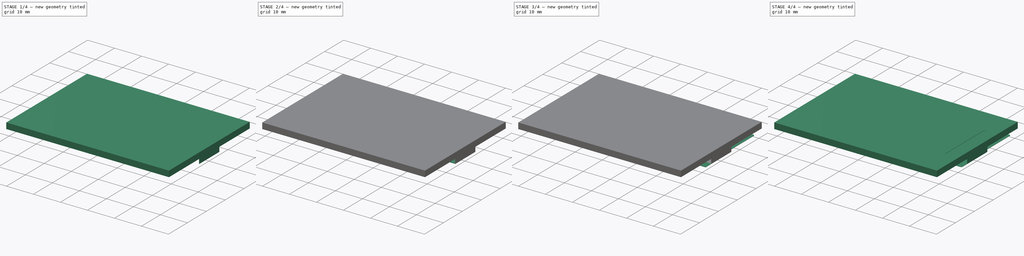
[diagram: build sequence overview — one tinted view per stage of 4, left to right]
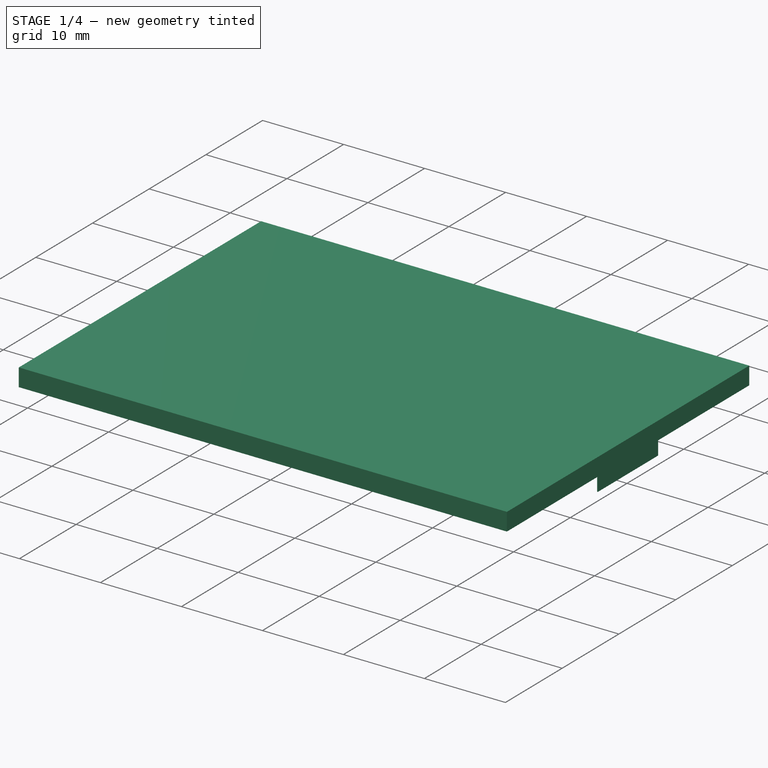
[diagram: stage 1 of 4 — iso view after this stage's code; geometry added in this stage tinted green]
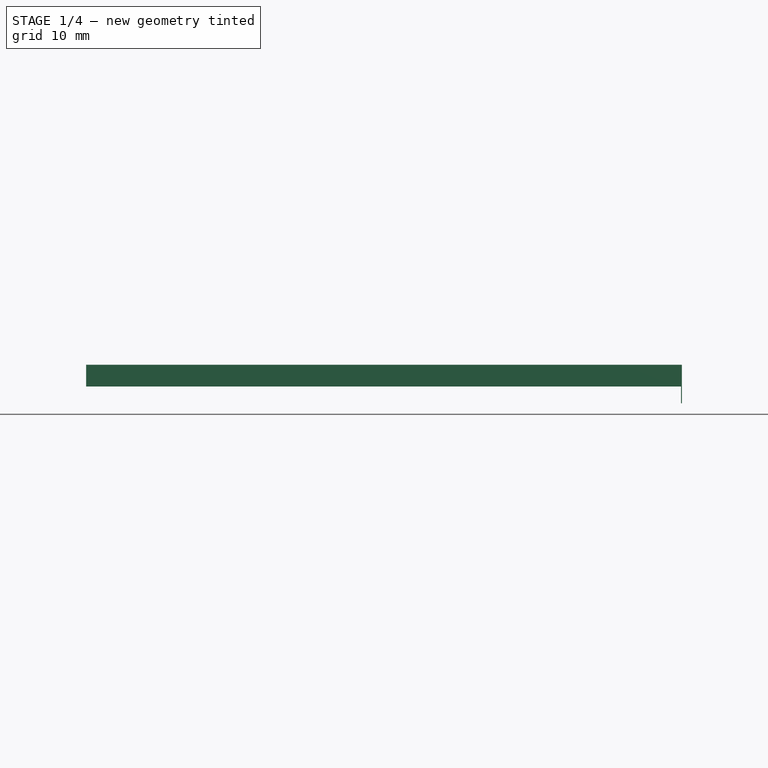
[diagram: stage 1 of 4 — front view after this stage's code; geometry added in this stage tinted green]
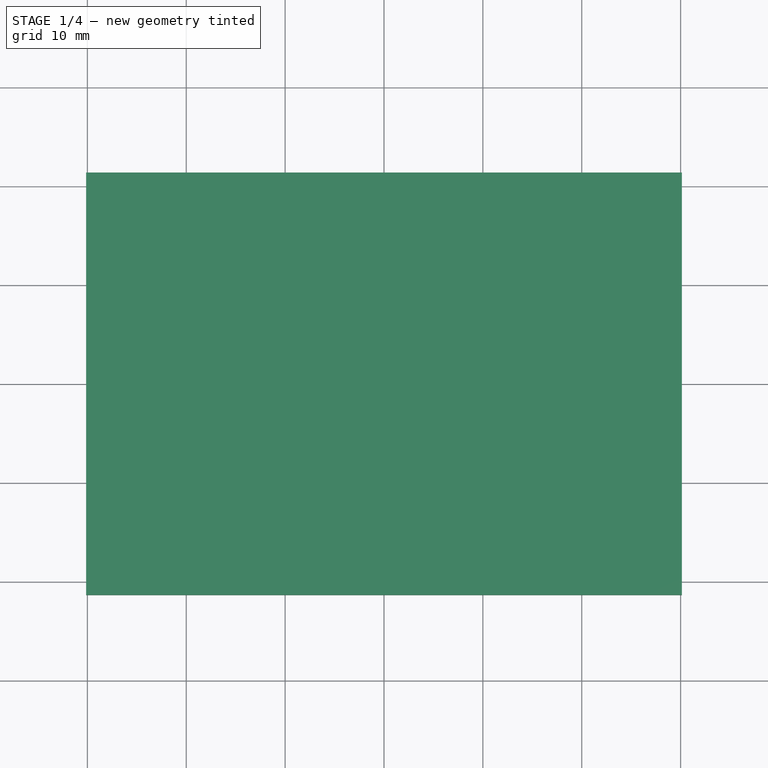
[diagram: stage 1 of 4 — top view after this stage's code; geometry added in this stage tinted green]
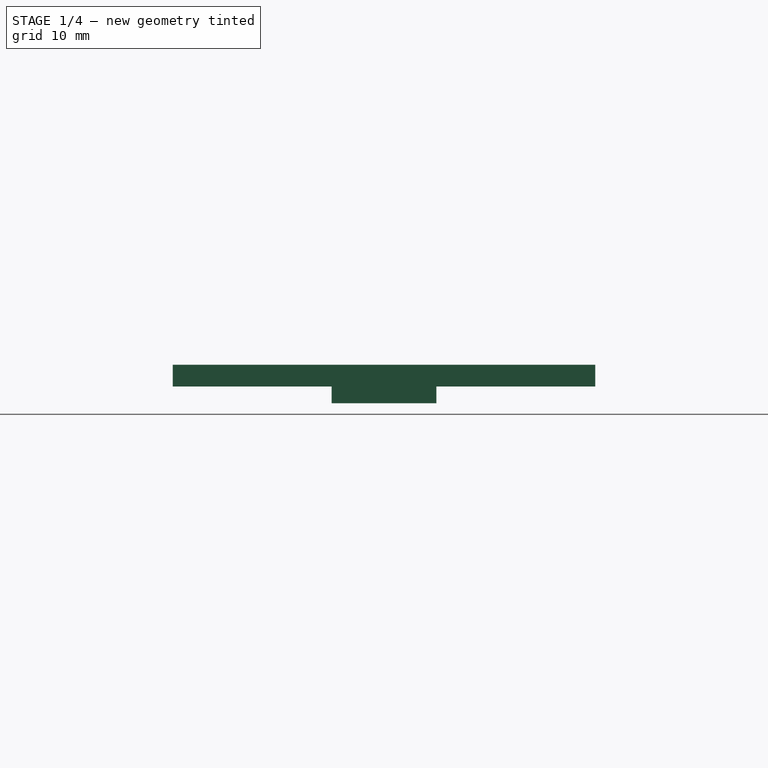
[diagram: stage 1 of 4 — right view after this stage's code; geometry added in this stage tinted green]
FCSTD DOCUMENT  (FreeCAD 0.20R29177 +426 (Git))
Label: 2.4Inch-3D-Model
License: All rights reserved
LicenseURL: http://en.wikipedia.org/wiki/All_rights_reserved
objects: Sketcher::SketchObject×8, PartDesign::Pad×7, PartDesign::Fillet×4, PartDesign::Pocket×1, PartDesign::Body×1
note: 33 computed .brp shape members not serialized (recipe doc carries the construction recipe); baked Part::Feature solids carry a one-line shape summary decoded from their .brp

FEATURE [Sketcher::SketchObject] Sketch
  FullyConstrained = true
  MapMode = 5
  Support = -> [XY_Plane]
  sketch-geometry (4):
    g0: LineSegment StartX=-28.63 StartY=20.31 StartZ=0 EndX=28.63 EndY=20.31 EndZ=0
    g1: LineSegment StartX=28.63 StartY=20.31 StartZ=0 EndX=28.63 EndY=-20.31 EndZ=0
    g2: LineSegment StartX=28.63 StartY=-20.31 StartZ=0 EndX=-28.63 EndY=-20.31 EndZ=0
    g3: LineSegment StartX=-28.63 StartY=-20.31 StartZ=0 EndX=-28.63 EndY=20.31 EndZ=0
  constraints (11):
    c: Coincident(g0,g1)
    c: Coincident(g1,g2)
    c: Coincident(g2,g3)
    c: Coincident(g3,g0)
    c: Horizontal(g0)
    c: Horizontal(g2)
    c: Vertical(g1)
    c: Vertical(g3)
    c: DistanceX(g0,g0) = 57.26
    c: DistanceY(g3,g3) = 40.62
    c: Symmetric(g2,g0,g-1)
FEATURE [PartDesign::Pad] Pad
  Direction = (0,0,1)
  Length = 2.2
  Length2 = 10
  Profile = -> Sketch
  ReferenceAxis = -> Sketch [N_Axis]
  Type = 0
FEATURE [Sketcher::SketchObject] Sketch001
  FullyConstrained = true
  MapMode = 5
  Placement = pos=(0,0,2.2) rot=(0,0,1;0rad)
  Support = -> [Pad]
  sketch-geometry (4):
    g0: LineSegment StartX=-30.13 StartY=21.36 StartZ=0 EndX=30.13 EndY=21.36 EndZ=0
    g1: LineSegment StartX=30.13 StartY=21.36 StartZ=0 EndX=30.13 EndY=-21.36 EndZ=0
    g2: LineSegment StartX=30.13 StartY=-21.36 StartZ=0 EndX=-30.13 EndY=-21.36 EndZ=0
    g3: LineSegment StartX=-30.13 StartY=-21.36 StartZ=0 EndX=-30.13 EndY=21.36 EndZ=0
  constraints (11):
    c: Coincident(g0,g1)
    c: Coincident(g1,g2)
    c: Coincident(g2,g3)
    c: Coincident(g3,g0)
    c: Horizontal(g0)
    c: Horizontal(g2)
    c: Vertical(g1)
    c: Vertical(g3)
    c: DistanceY(g3,g3) = 42.72
    c: DistanceX(g0,g0) = 60.26
    c: Symmetric(g0,g2,g-1)
FEATURE [PartDesign::Pad] Pad001
  BaseFeature = -> Pad
  Direction = (0,0,1)
  Length = 2.2
  Length2 = 10
  Profile = -> Sketch001
  ReferenceAxis = -> Sketch001 [N_Axis]
  Reversed = true
  Type = 0
FEATURE [Sketcher::SketchObject] Sketch002
  ExternalGeometry = -> [Pad001]
  FullyConstrained = true
  MapMode = 5
  Placement = pos=(0,0,0) rot=(1,0,0;3.14159rad)
  Support = -> [Pad001]
  sketch-geometry (4):
    g0: LineSegment StartX=30.03 StartY=5.3 StartZ=0 EndX=30.13 EndY=5.3 EndZ=0
    g1: LineSegment StartX=30.13 StartY=5.3 StartZ=0 EndX=30.13 EndY=-5.3 EndZ=0
    g2: LineSegment StartX=30.13 StartY=-5.3 StartZ=0 EndX=30.03 EndY=-5.3 EndZ=0
    g3: LineSegment StartX=30.03 StartY=-5.3 StartZ=0 EndX=30.03 EndY=5.3 EndZ=0
  constraints (11):
    c: Coincident(g0,g1)
    c: Coincident(g1,g2)
    c: Coincident(g2,g3)
    c: Coincident(g3,g0)
    c: Horizontal(g0)
    c: Horizontal(g2)
    c: Vertical(g3)
    c: DistanceX(g0,g0) = 0.1
    c: DistanceY(g3,g3) = 10.6
    c: Symmetric(g0,g1,g-1)
    c: PointOnObject(g0,g-3)
FEATURE [PartDesign::Pad] Pad002
  BaseFeature = -> Pad001
  Direction = (0,0,-1)
  Length = 1.7
  Length2 = 10
  Profile = -> Sketch002
  ReferenceAxis = -> Sketch002 [N_Axis]
  Type = 0
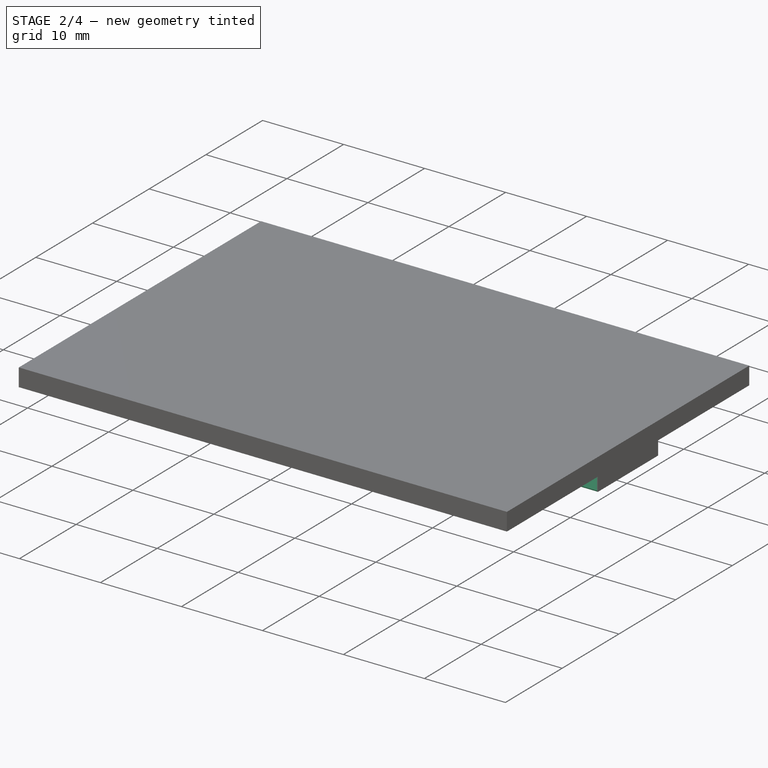
[diagram: stage 2 of 4 — iso view after this stage's code; geometry added in this stage tinted green]
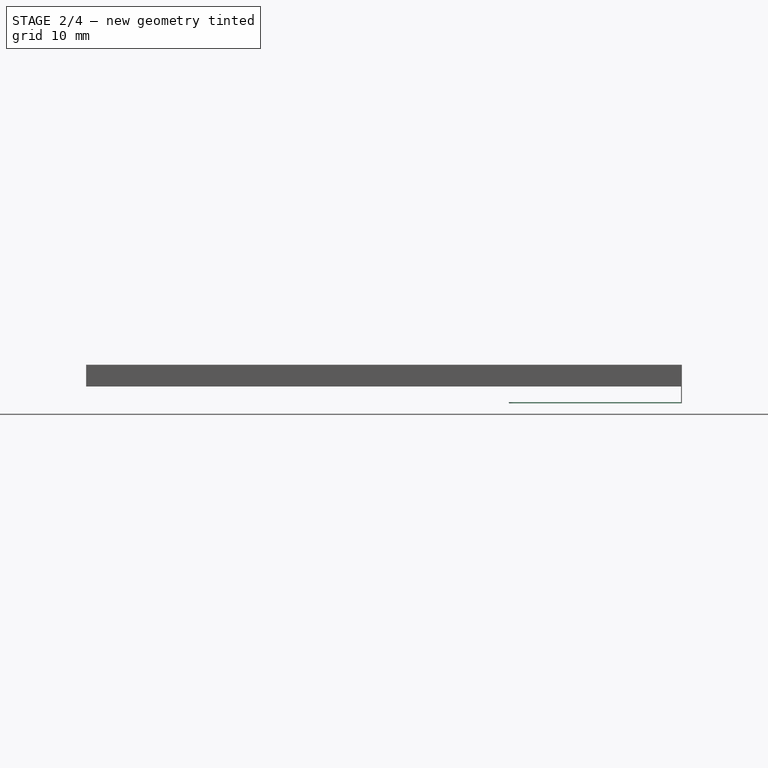
[diagram: stage 2 of 4 — front view after this stage's code; geometry added in this stage tinted green]
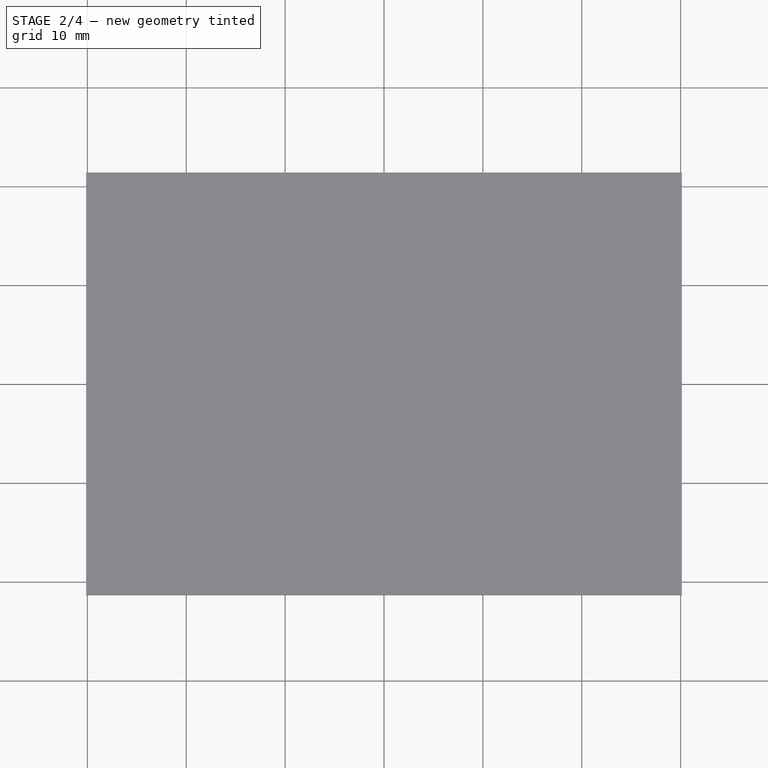
[diagram: stage 2 of 4 — top view after this stage's code; geometry added in this stage tinted green]
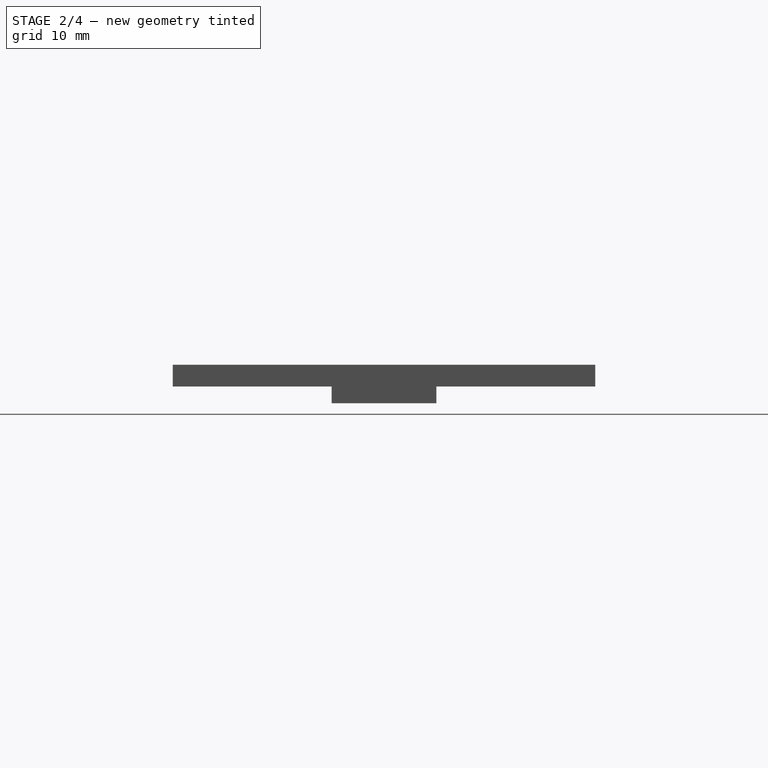
[diagram: stage 2 of 4 — right view after this stage's code; geometry added in this stage tinted green]
FEATURE [Sketcher::SketchObject] Sketch003
  ExternalGeometry = -> [Pad002]
  FullyConstrained = true
  MapMode = 5
  Placement = pos=(30.03,0,0) rot=(0.57735,-0.57735,-0.57735;2.0944rad)
  Support = -> [Pad002]
  sketch-geometry (4):
    g0: LineSegment StartX=5.3 StartY=-1.6 StartZ=0 EndX=-5.3 EndY=-1.6 EndZ=0
    g1: LineSegment StartX=-5.3 StartY=-1.6 StartZ=0 EndX=-5.3 EndY=-1.7 EndZ=0
    g2: LineSegment StartX=-5.3 StartY=-1.7 StartZ=0 EndX=5.3 EndY=-1.7 EndZ=0
    g3: LineSegment StartX=5.3 StartY=-1.7 StartZ=0 EndX=5.3 EndY=-1.6 EndZ=0
  constraints (10):
    c: Coincident(g0,g1)
    c: Coincident(g1,g2)
    c: Coincident(g2,g3)
    c: Coincident(g3,g0)
    c: Horizontal(g0)
    c: Vertical(g1)
    c: Vertical(g3)
    c: DistanceY(g1,g1) = 0.1
    c: Coincident(g1,g-5)
    c: Coincident(g2,g-4)
FEATURE [PartDesign::Pad] Pad003
  BaseFeature = -> Pad002
  Direction = (-1,0,0)
  Length = 17.4
  Length2 = 10
  Profile = -> Sketch003
  ReferenceAxis = -> Sketch003 [N_Axis]
  Type = 0
FEATURE [Sketcher::SketchObject] Sketch004
  ExternalGeometry = -> [Pad003]
  FullyConstrained = true
  MapMode = 5
  Placement = pos=(0,0,2.2) rot=(0,0,1;0rad)
  Support = -> [Pad003]
  sketch-geometry (4):
    g0: LineSegment StartX=-27.03 StartY=18.71 StartZ=0 EndX=22.63 EndY=18.71 EndZ=0
    g1: LineSegment StartX=22.63 StartY=18.71 StartZ=0 EndX=22.63 EndY=-18.71 EndZ=0
    g2: LineSegment StartX=22.63 StartY=-18.71 StartZ=0 EndX=-27.03 EndY=-18.71 EndZ=0
    g3: LineSegment StartX=-27.03 StartY=-18.71 StartZ=0 EndX=-27.03 EndY=18.71 EndZ=0
  constraints (11):
    c: Coincident(g0,g1)
    c: Coincident(g1,g2)
    c: Coincident(g2,g3)
    c: Coincident(g3,g0)
    c: Horizontal(g0)
    c: Horizontal(g2)
    c: Vertical(g1)
    c: DistanceX(g0,g0) = 49.66
    c: DistanceY(g3,g3) = 37.42
    c: Distance(g1,g-3) = 6
    c: Symmetric(g2,g0,g-1)
FEATURE [PartDesign::Pad] Pad004
  BaseFeature = -> Pad003
  Direction = (0,0,1)
  Length = 1
  Length2 = 10
  Profile = -> Sketch004
  ReferenceAxis = -> Sketch004 [N_Axis]
  Reversed = true
  Type = 0
FEATURE [PartDesign::Fillet] Fillet
  Base = -> Pad004 [Edge47,Edge43]
  BaseFeature = -> Pad004
  Radius = 0.5
  SupportTransform = false
  UseAllEdges = false
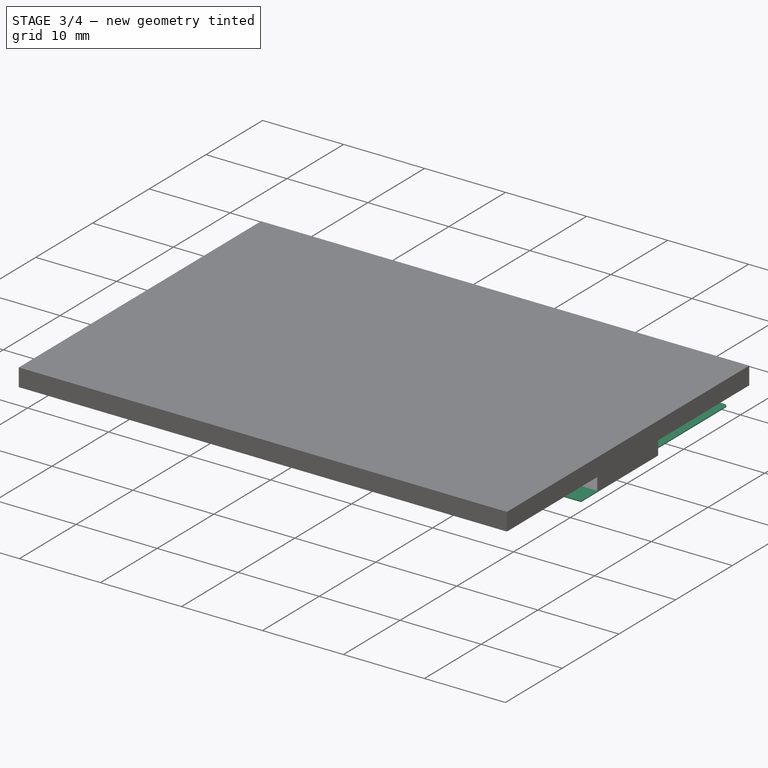
[diagram: stage 3 of 4 — iso view after this stage's code; geometry added in this stage tinted green]
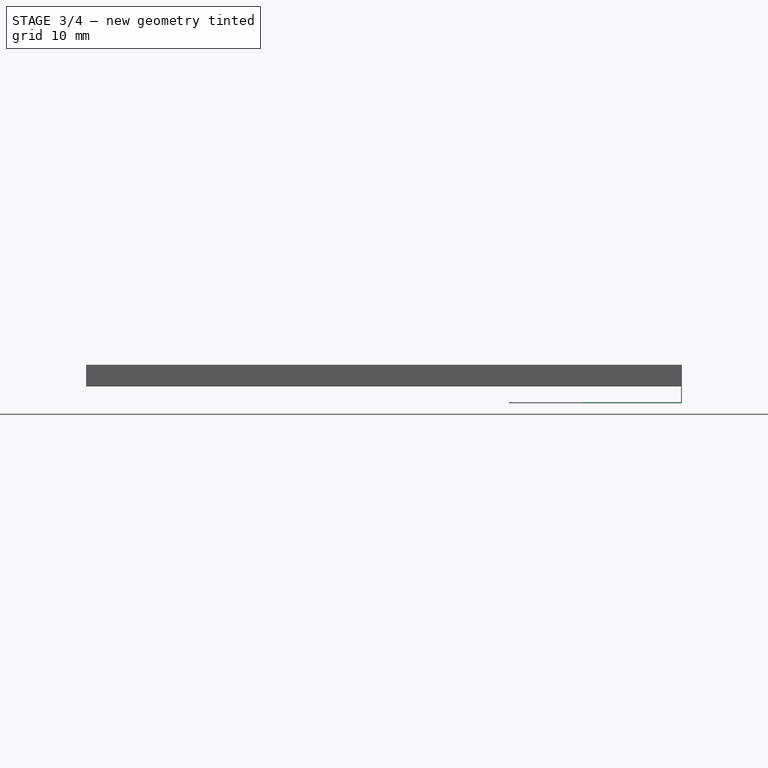
[diagram: stage 3 of 4 — front view after this stage's code; geometry added in this stage tinted green]
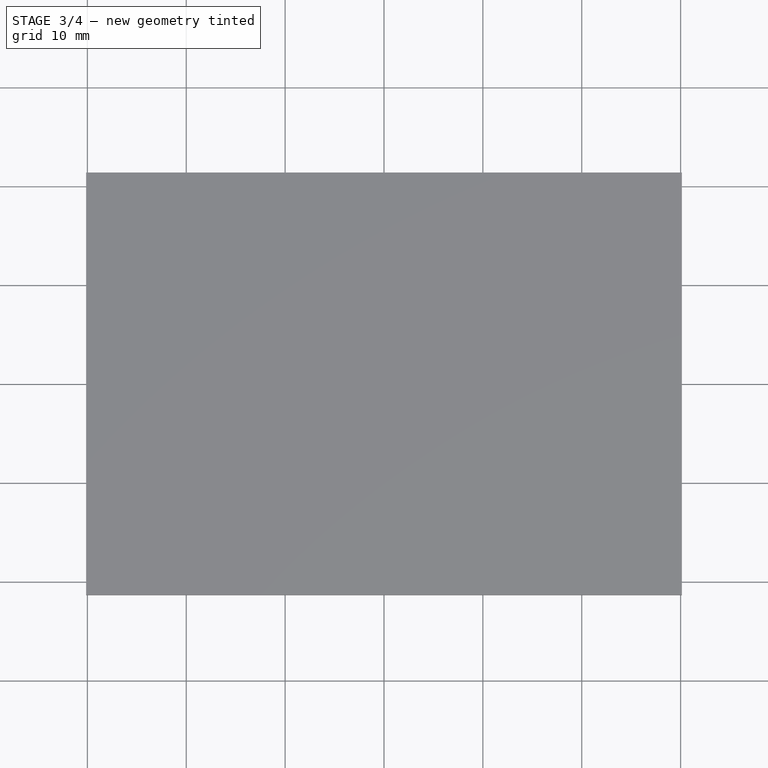
[diagram: stage 3 of 4 — top view after this stage's code; geometry added in this stage tinted green]
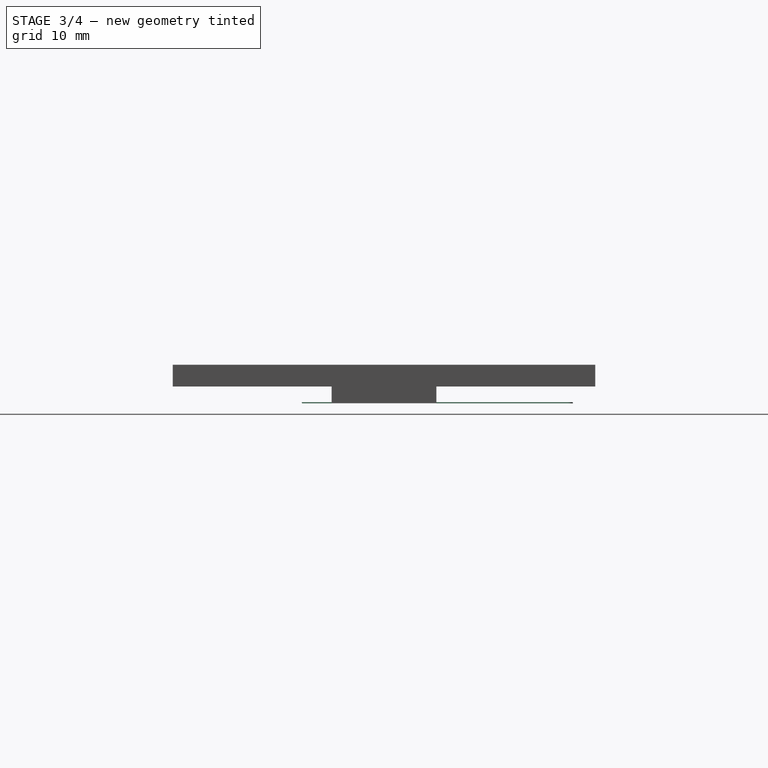
[diagram: stage 3 of 4 — right view after this stage's code; geometry added in this stage tinted green]
FEATURE [Sketcher::SketchObject] Sketch005
  ExternalGeometry = -> [Fillet]
  FullyConstrained = true
  MapMode = 5
  Placement = pos=(0,5.3,0) rot=(0,0.707107,0.707107;3.14159rad)
  Support = -> [Fillet]
  sketch-geometry (4):
    g0: LineSegment StartX=-29.13 StartY=-1.6 StartZ=0 EndX=-19.13 EndY=-1.6 EndZ=0
    g1: LineSegment StartX=-19.13 StartY=-1.6 StartZ=0 EndX=-19.13 EndY=-1.7 EndZ=0
    g2: LineSegment StartX=-19.13 StartY=-1.7 StartZ=0 EndX=-29.13 EndY=-1.7 EndZ=0
    g3: LineSegment StartX=-29.13 StartY=-1.7 StartZ=0 EndX=-29.13 EndY=-1.6 EndZ=0
  constraints (12):
    c: Coincident(g0,g1)
    c: Coincident(g1,g2)
    c: Coincident(g2,g3)
    c: Coincident(g3,g0)
    c: Horizontal(g0)
    c: Horizontal(g2)
    c: Vertical(g1)
    c: Vertical(g3)
    c: DistanceY(g1,g1) = 0.1
    c: DistanceX(g0,g0) = 10
    c: Distance(g0,g-3) = 1
    c: PointOnObject(g0,g-4)
FEATURE [PartDesign::Pad] Pad005
  BaseFeature = -> Fillet
  Direction = (0,1,-2e-16)
  Length = 13.8
  Length2 = 10
  Profile = -> Sketch005
  ReferenceAxis = -> Sketch005 [N_Axis]
  Type = 0
FEATURE [PartDesign::Fillet] Fillet001
  Base = -> Pad005 [Edge52,Edge18]
  BaseFeature = -> Pad005
  Radius = 0.5
  SupportTransform = false
  UseAllEdges = false
FEATURE [Sketcher::SketchObject] Sketch006
  ExternalGeometry = -> [Fillet001]
  FullyConstrained = true
  MapMode = 5
  Placement = pos=(0,-5.3,0) rot=(1,0,0;1.5708rad)
  Support = -> [Fillet001]
  sketch-geometry (4):
    g0: LineSegment StartX=20.13 StartY=-1.6 StartZ=0 EndX=30.13 EndY=-1.6 EndZ=0
    g1: LineSegment StartX=30.13 StartY=-1.6 StartZ=0 EndX=30.13 EndY=-1.7 EndZ=0
    g2: LineSegment StartX=30.13 StartY=-1.7 StartZ=0 EndX=20.13 EndY=-1.7 EndZ=0
    g3: LineSegment StartX=20.13 StartY=-1.7 StartZ=0 EndX=20.13 EndY=-1.6 EndZ=0
  constraints (11):
    c: Coincident(g0,g1)
    c: Coincident(g1,g2)
    c: Coincident(g2,g3)
    c: Coincident(g3,g0)
    c: Horizontal(g0)
    c: Horizontal(g2)
    c: Vertical(g1)
    c: Vertical(g3)
    c: DistanceY(g1,g1) = 0.1
    c: DistanceX(g0,g0) = 10
    c: Coincident(g1,g-3)
FEATURE [PartDesign::Pad] Pad006
  BaseFeature = -> Fillet001
  Direction = (0,-1,2e-16)
  Length = 3
  Length2 = 10
  Profile = -> Sketch006
  ReferenceAxis = -> Sketch006 [N_Axis]
  Type = 0
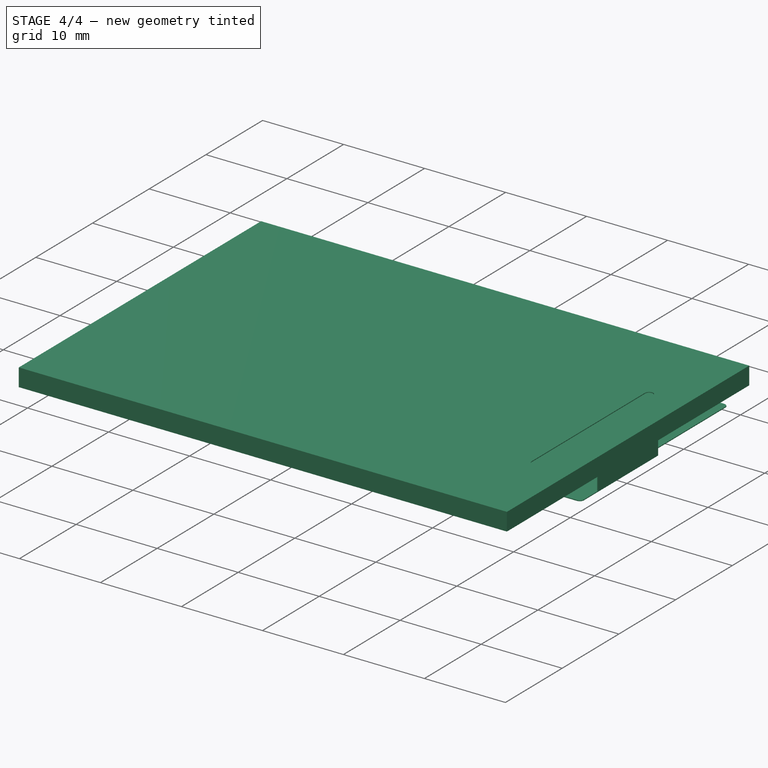
[diagram: stage 4 of 4 — iso view after this stage's code; geometry added in this stage tinted green]
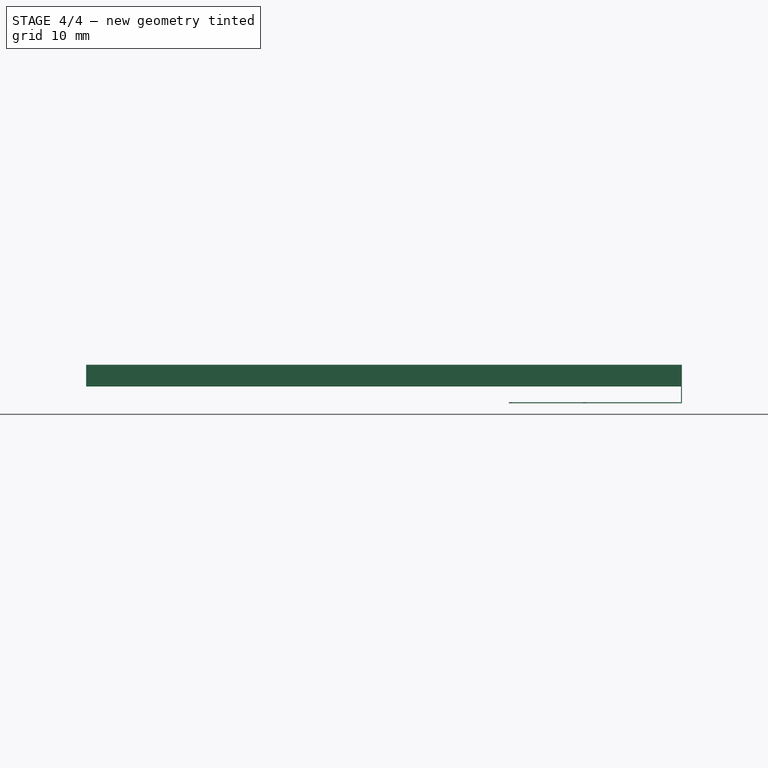
[diagram: stage 4 of 4 — front view after this stage's code; geometry added in this stage tinted green]
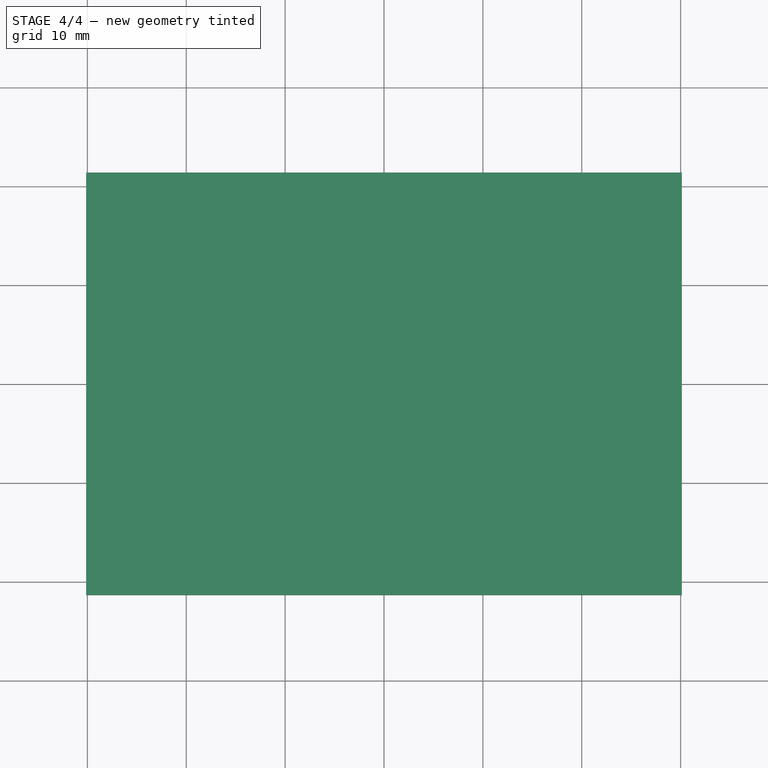
[diagram: stage 4 of 4 — top view after this stage's code; geometry added in this stage tinted green]
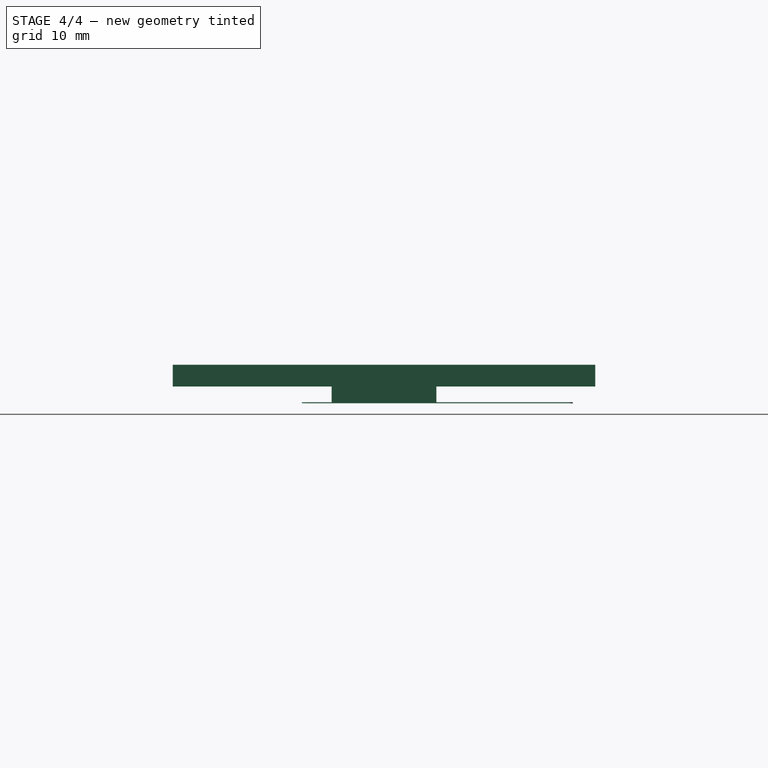
[diagram: stage 4 of 4 — right view after this stage's code; geometry added in this stage tinted green]
FEATURE [Sketcher::SketchObject] Sketch007
  ExternalGeometry = -> [Pad006]
  FullyConstrained = true
  MapMode = 5
  Placement = pos=(0,0,2.2) rot=(0,0,1;0rad)
  Support = -> [Pad006]
  sketch-geometry (4):
    g0: ArcOfCircle CenterX=25.73 CenterY=10 CenterZ=0 NormalX=0 NormalY=0 NormalZ=1 AngleXU=0 Radius=0.5 StartAngle=-9e-16 EndAngle=3.14159
    g1: ArcOfCircle CenterX=25.73 CenterY=-10 CenterZ=0 NormalX=0 NormalY=0 NormalZ=1 AngleXU=0 Radius=0.5 StartAngle=3.14159 EndAngle=6.28319
    g2: LineSegment StartX=25.23 StartY=10 StartZ=0 EndX=25.23 EndY=-10 EndZ=0
    g3: LineSegment StartX=26.23 StartY=-10 StartZ=0 EndX=26.23 EndY=10 EndZ=0
  constraints (9):
    c: Tangent(g0,g2) = -1.5708
    c: Tangent(g2,g1) = -1.5708
    c: Tangent(g1,g3) = -1.5708
    c: Tangent(g3,g0) = -1.5708
    c: Equal(g0,g1)
    c: Distance(g0,g0) = 1
    c: Symmetric(g0,g1,g-1)
    c: DistanceY(g3,g3) = 20
    c: Distance(g0,g-3) = 2.4
FEATURE [PartDesign::Pocket] Pocket
  BaseFeature = -> Pad006
  Direction = (0,0,-1)
  Length = 0.1
  Length2 = 5
  Profile = -> Sketch007
  ReferenceAxis = -> Sketch007 [N_Axis]
  Type = 0
FEATURE [PartDesign::Fillet] Fillet002
  Base = -> Pocket [Edge70]
  BaseFeature = -> Pocket
  Radius = 0.5
  SupportTransform = false
  UseAllEdges = false
FEATURE [PartDesign::Fillet] Fillet003
  Base = -> Fillet002 [Edge21]
  BaseFeature = -> Fillet002
  Radius = 0.5
  SupportTransform = false
  UseAllEdges = false
FEATURE [PartDesign::Body] Body
  Group = -> [Sketch,Pad,Sketch001,Pad001,Sketch002,Pad002,Sketch003,Pad003,Sketch004,Pad004,Fillet,Sketch005,Pad005,Fillet001,Sketch006,Pad006,Sketch007,Pocket,Fillet002,Fillet003]
  Origin = -> Origin
  Tip = -> Fillet003
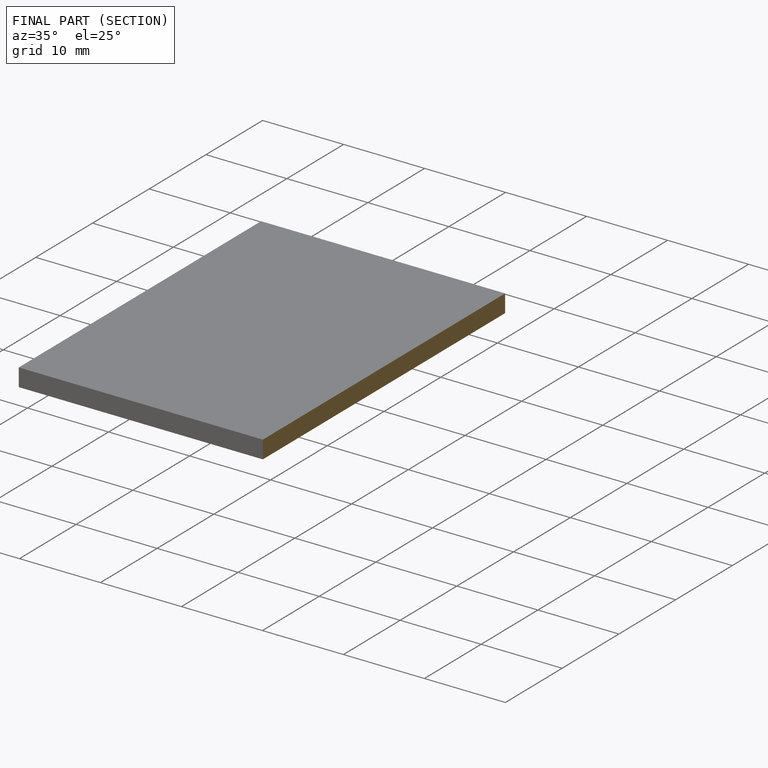
[diagram: finished part — half-section view (interior)]
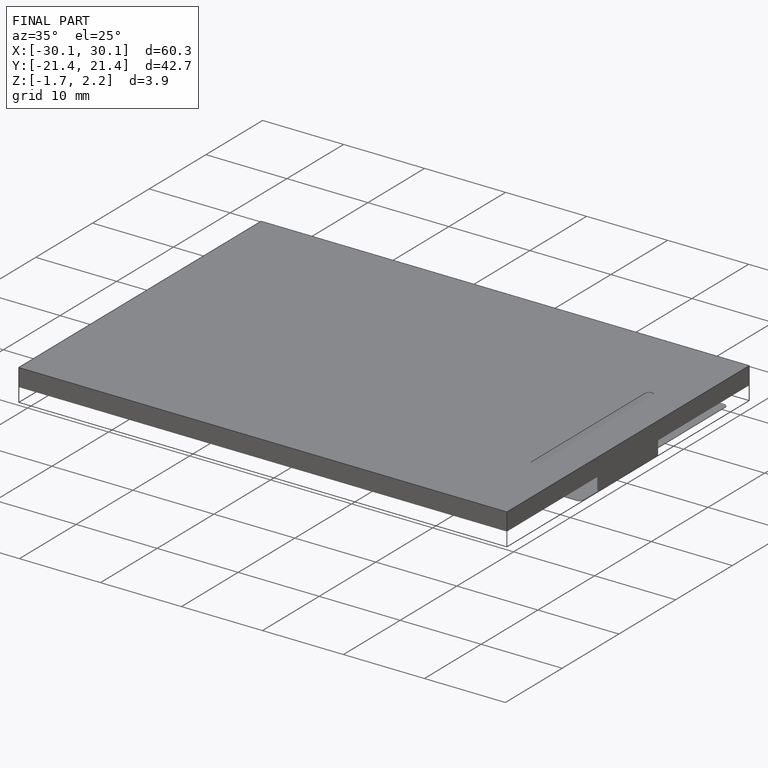
[diagram: finished part — iso view with bounding-box wireframe]
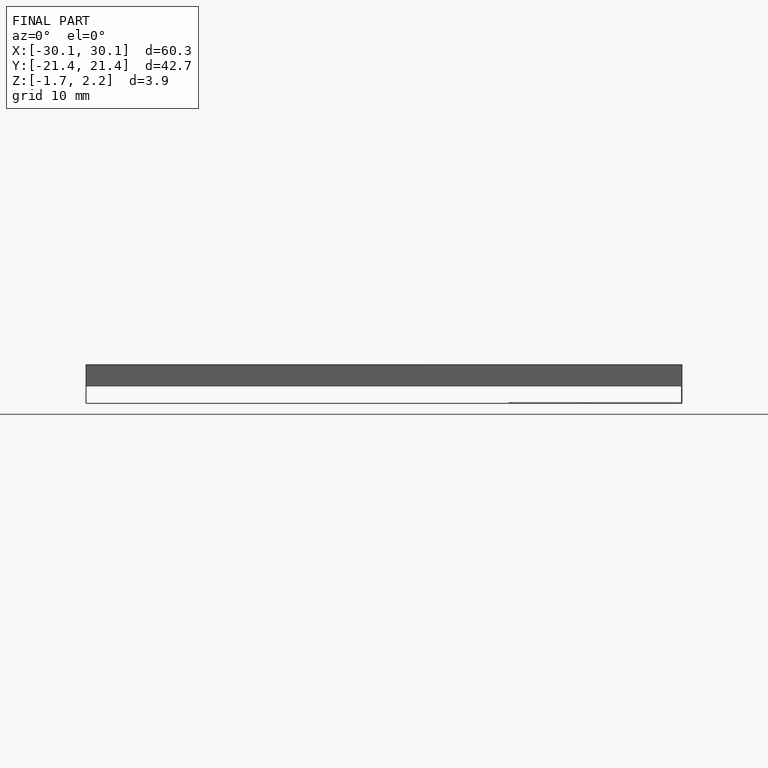
[diagram: finished part — front view with bounding-box wireframe]
